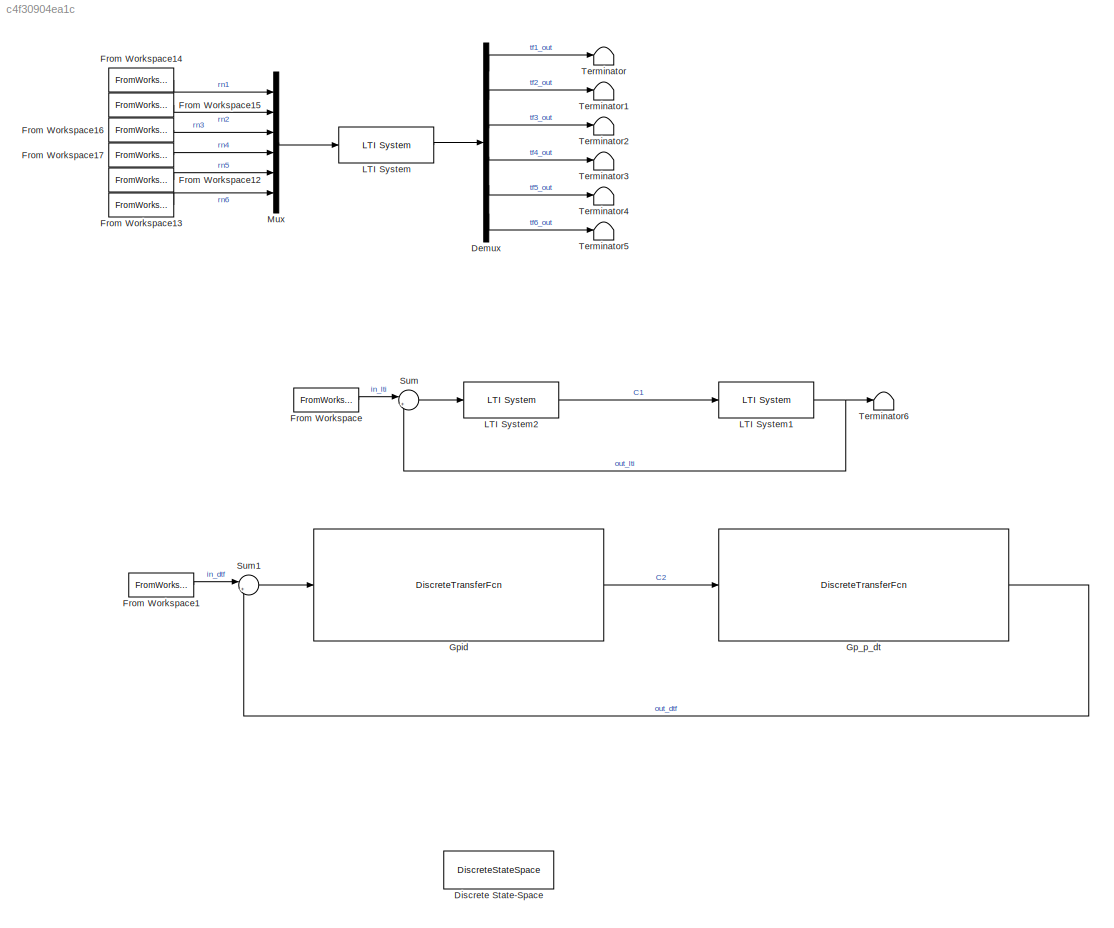
MODEL slx_c4f30904ea1c
KIND model
CONFIG AbsTol = auto
CONFIG EnableMultiTasking = off
CONFIG FixedStep = 1e-3
CONFIG MaxStep = 1e-3
CONFIG MinStep = auto
CONFIG RelTol = 1e-3
CONFIG SampleTimeConstraint = Unconstrained
CONFIG SolverName = FixedStepDiscrete
CONFIG StartTime = 0.0
CONFIG StopTime = 10
BLOCK [Demux] Demux
  Commented = on
  Outputs = 6
  Ports = [1, 6]
BLOCK [DiscreteStateSpace] Discrete State-Space
  A = a
  B = b
  C = c
  D = d
  SampleTime = 1e-3
BLOCK [FromWorkspace] From Workspace
  Interpolate = off
  OutputAfterFinalValue = Holding final value
  VariableName = rn1_ts
BLOCK [FromWorkspace] From Workspace1
  Interpolate = off
  OutputAfterFinalValue = Holding final value
  VariableName = rn1_ts
BLOCK [FromWorkspace] From Workspace12
  Commented = on
  VariableName = rn5_ts
BLOCK [FromWorkspace] From Workspace13
  Commented = on
  VariableName = rn6_ts
BLOCK [FromWorkspace] From Workspace14
  Commented = on
  SampleTime = 1e-3
  VariableName = rn1_ts
BLOCK [FromWorkspace] From Workspace15
  Commented = on
  VariableName = rn2_ts
BLOCK [FromWorkspace] From Workspace16
  Commented = on
  VariableName = rn3_ts
BLOCK [FromWorkspace] From Workspace17
  Commented = on
  VariableName = rn4_ts
BLOCK [DiscreteTransferFcn] Gp_p_dt
  Denominator = [1 -1.899 0.9162]
  InputPortMap = u0
  Numerator = [0 0.00842  0.008178]
  Ports = [1, 1]
BLOCK [DiscreteTransferFcn] Gpid
  Denominator = [1 -3.141 3.546 -1.664 0.2592]
  InputPortMap = u0
  Numerator = [0.4415 -1.429 1.693 -0.8595 0.1537]
  Ports = [1, 1]
  a0EqualsOne = on
BLOCK [Reference] LTI System  REF=cstblocks/LTI System
  Commented = on
  Ports = [1, 1]
  SourceBlock = cstblocks/LTI System
  SourceProductBaseCode = CT
  SourceType = LTI Block
BLOCK [Reference] LTI System1  REF=cstblocks/LTI System
  Ports = [1, 1]
  SourceBlock = cstblocks/LTI System
  SourceProductBaseCode = CT
  SourceType = LTI Block
BLOCK [Reference] LTI System2  REF=cstblocks/LTI System
  Ports = [1, 1]
  SourceBlock = cstblocks/LTI System
  SourceProductBaseCode = CT
  SourceType = LTI Block
BLOCK [Mux] Mux
  Commented = on
  DisplayOption = bar
  Inputs = 6
  Ports = [6, 1]
BLOCK [Sum] Sum
  Inputs = |+-
  Ports = [2, 1]
BLOCK [Sum] Sum1
  Inputs = |+-
  Ports = [2, 1]
BLOCK [Terminator] Terminator
  Commented = on
BLOCK [Terminator] Terminator1
  Commented = on
BLOCK [Terminator] Terminator2
  Commented = on
BLOCK [Terminator] Terminator3
  Commented = on
BLOCK [Terminator] Terminator4
  Commented = on
BLOCK [Terminator] Terminator5
  Commented = on
BLOCK [Terminator] Terminator6
LINE Demux:1 -> Terminator:1
LINE Demux:2 -> Terminator1:1
LINE Demux:3 -> Terminator2:1
LINE Demux:4 -> Terminator3:1
LINE Demux:5 -> Terminator4:1
LINE Demux:6 -> Terminator5:1
LINE From Workspace12:1 -> Mux:5
LINE From Workspace13:1 -> Mux:6
LINE From Workspace14:1 -> Mux:1
LINE From Workspace15:1 -> Mux:2
LINE From Workspace16:1 -> Mux:3
LINE From Workspace17:1 -> Mux:4
LINE From Workspace1:1 -> Sum1:1
LINE From Workspace:1 -> Sum:1
LINE Gp_p_dt:1 -> Sum1:2
LINE Gpid:1 -> Gp_p_dt:1
NET LTI System1:1 -> Sum:2, Terminator6:1
LINE LTI System2:1 -> LTI System1:1
LINE LTI System:1 -> Demux:1
LINE Mux:1 -> LTI System:1
LINE Sum1:1 -> Gpid:1
LINE Sum:1 -> LTI System2:1
note: NET lines group one-source signal fan-out (src -> all destinations, sorted); 1:1 wires keep LINE
